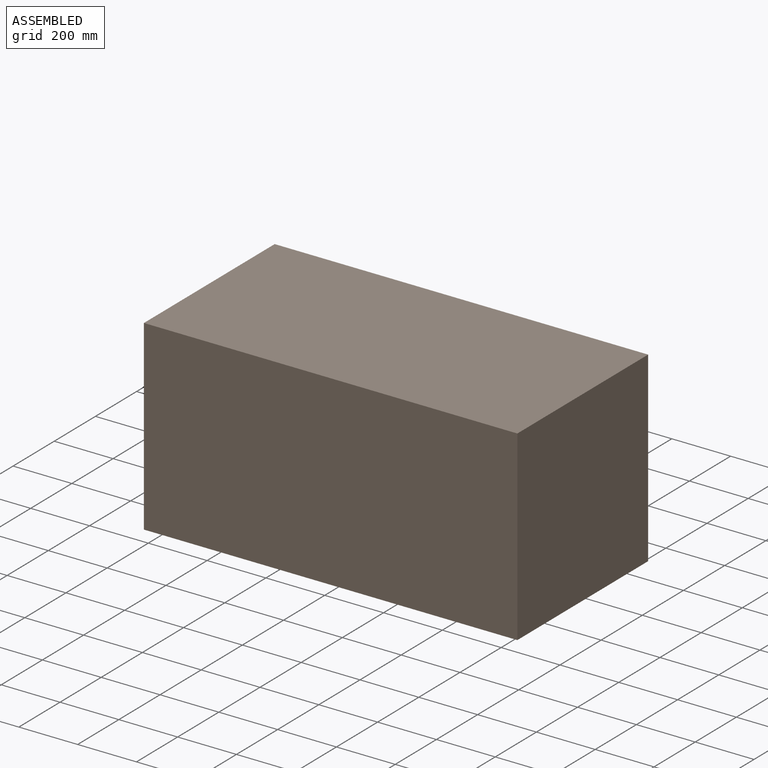
[diagram: assembled view]
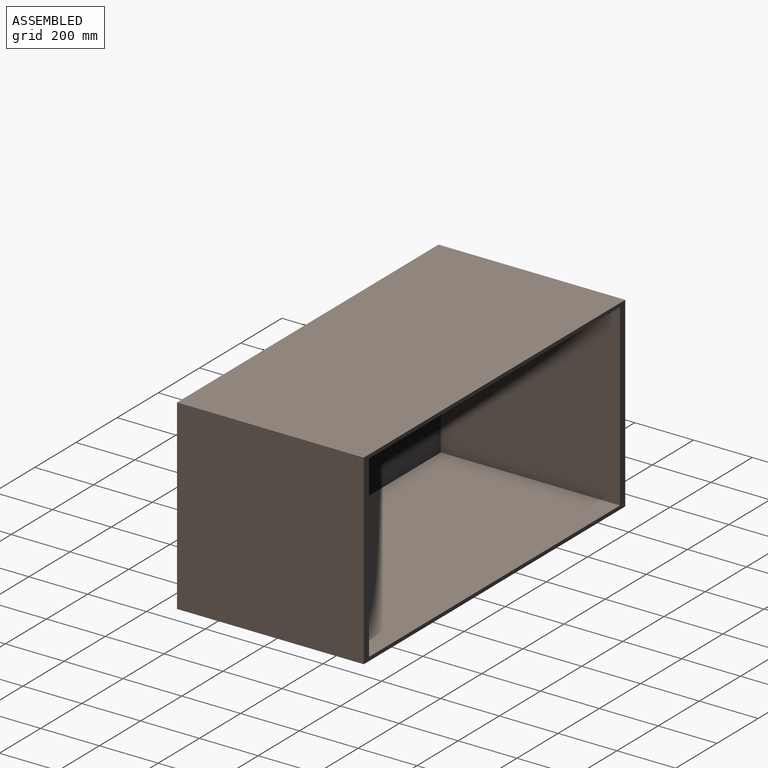
[diagram: assembled view, second angle]
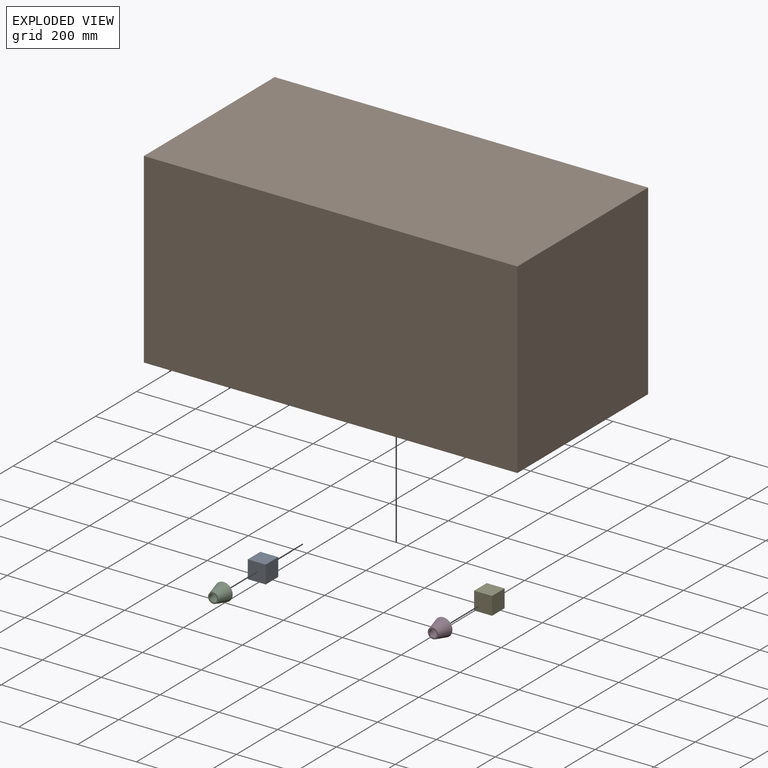
[diagram: exploded view]
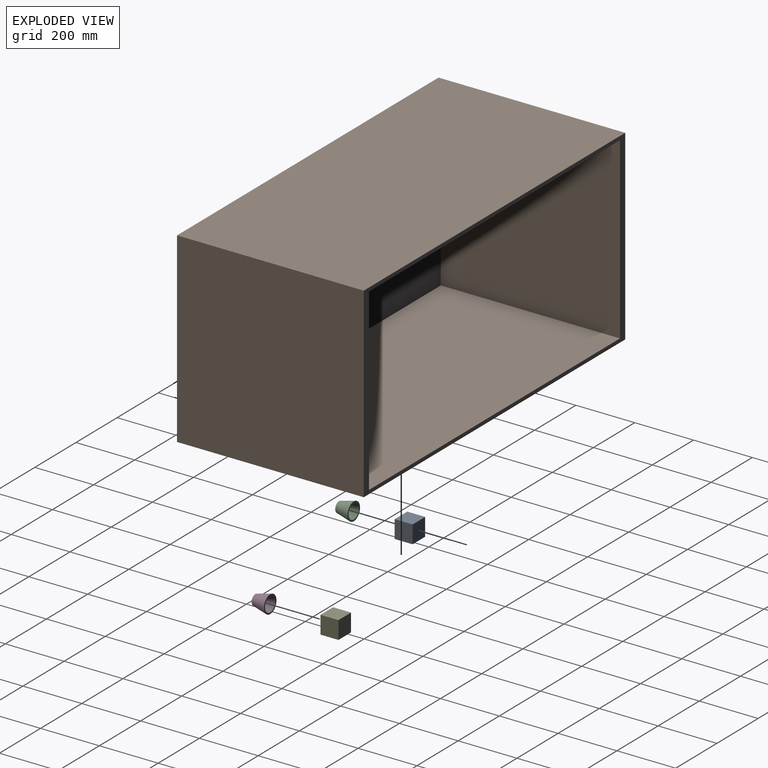
[diagram: exploded view, second angle]
ASSEMBLY  parts=5 mates=4
PART A: 6 faces, bbox 61x61x61 mm
  f0: plane 60.96x60.96mm, normal (0,0,-1), area 3716.1mm2, adj f1,f3,f4,f5
  f1: plane 60.96x60.96mm, normal (1,0,0), area 3716.1mm2, adj f0,f2,f4,f5
  f2: plane 60.96x60.96mm, normal (0,0,1), area 3716.1mm2, adj f1,f3,f4,f5
  f3: plane 60.96x60.96mm, normal (-1,0,0), area 3716.1mm2, adj f0,f2,f4,f5
  f4: plane 60.96x60.96mm, normal (0,-1,0), area 3716.1mm2, adj f0,f1,f2,f3
  f5: plane 60.96x60.96mm, normal (0,1,0), area 3716.1mm2, adj f0,f1,f2,f3
PART B: 19 faces, bbox 1270x635x685.8 mm
  f0: plane 1270x635mm, normal (0,0,-1), area 802396.3mm2, adj f1,f3,f4,f5,f12,f16
  f1: plane 635x635mm, normal (1,0,0), area 403225mm2, adj f0,f2,f4,f5
  f2: plane 1270x635mm, normal (0,0,1), area 806450mm2, adj f1,f3,f4,f5
  f3: plane 635x635mm, normal (-1,0,0), area 403225mm2, adj f0,f2,f4,f5
  f4: plane 1270x635mm, normal (0,-1,0), area 806450mm2, adj f0,f1,f2,f3
  f5: plane 1270x635mm, normal (0,1,0), area 63225.7mm2, adj f0,f1,f2,f3,f6,f7,f8,f9
  f6: plane 1219.2x609.6mm, normal (0,0,1), area 743224.3mm2, adj f5,f7,f9,f10
  f7: plane 609.6x609.6mm, normal (-1,0,0), area 371612.2mm2, adj f5,f6,f8,f10
  f8: plane 1219.2x609.6mm, normal (0,0,-1), area 743224.3mm2, adj f5,f7,f9,f10
  f9: plane 609.6x609.6mm, normal (1,0,0), area 371612.2mm2, adj f5,f6,f8,f10
  f10: plane 1219.2x609.6mm, normal (0,1,0), area 743224.3mm2, adj f6,f7,f8,f9
  f11: cylinder r=12.7mm len=50.8mm, axis (0,0,1), area 4053.7mm2, adj f13,f14
  f12: cylinder r=25.4mm len=50.8mm, axis (0,0,1), area 8107.3mm2, adj f0,f13
  f13: plane 50.8x50.8mm, normal (0,0,-1), area 1520.1mm2, adj f11,f12
  f14: plane 25.4x25.4mm, normal (0,0,-1), area 506.7mm2, adj f11
  f15: cylinder r=12.7mm len=50.8mm, axis (0,0,1), area 4053.7mm2, adj f17,f18
  f16: cylinder r=25.4mm len=50.8mm, axis (0,0,1), area 8107.3mm2, adj f0,f17
  f17: plane 50.8x50.8mm, normal (0,0,-1), area 1520.1mm2, adj f15,f16
  f18: plane 25.4x25.4mm, normal (0,0,-1), area 506.7mm2, adj f15
PART C: 4 faces, bbox 61x61x50.8 mm
  f0: cone r=30.48mm half-angle=14deg, axis (0,0,1), area 7939mm2, adj f1,f3
  f1: plane 60.96x60.96mm, normal (0,0,1), area 891.8mm2, adj f0,f2
  f2: cone r=25.4mm half-angle=14deg, axis (0,0,1), area 6267.6mm2, adj f1,f3
  f3: plane 35.56x35.56mm, normal (0,0,-1), area 486.4mm2, adj f0,f2
PART D: same geometry as C
PART E: same geometry as A
PLACE A rot(axis=(0,1,0),90deg) t=(-776.44,-224.57,-358.49)mm
PLACE B t=(-458.94,62.45,40.29)mm
PLACE C rot(axis=(-0.58,0.58,0.58),120deg) t=(-776.44,-310.93,-358.49)mm
PLACE D rot(axis=(-0.58,0.58,0.58),120deg) t=(-141.44,-310.93,-358.49)mm
PLACE E rot(axis=(0,1,0),90deg) t=(-141.44,-224.57,-358.49)mm
MATE cylindrical C.f0 <-> A.f4  axis (0,1,0) through (-776.44,-285.53,-358.49)mm
MATE planar E.f3 <-> B.f11  axis (0,0,1) through (-141.44,-255.05,-328.01)mm
MATE planar A.f3 <-> B.f15  axis (0,0,1) through (-776.44,-255.05,-328.01)mm
MATE cylindrical D.f0 <-> E.f4  axis (0,1,0) through (-141.44,-285.53,-358.49)mm
